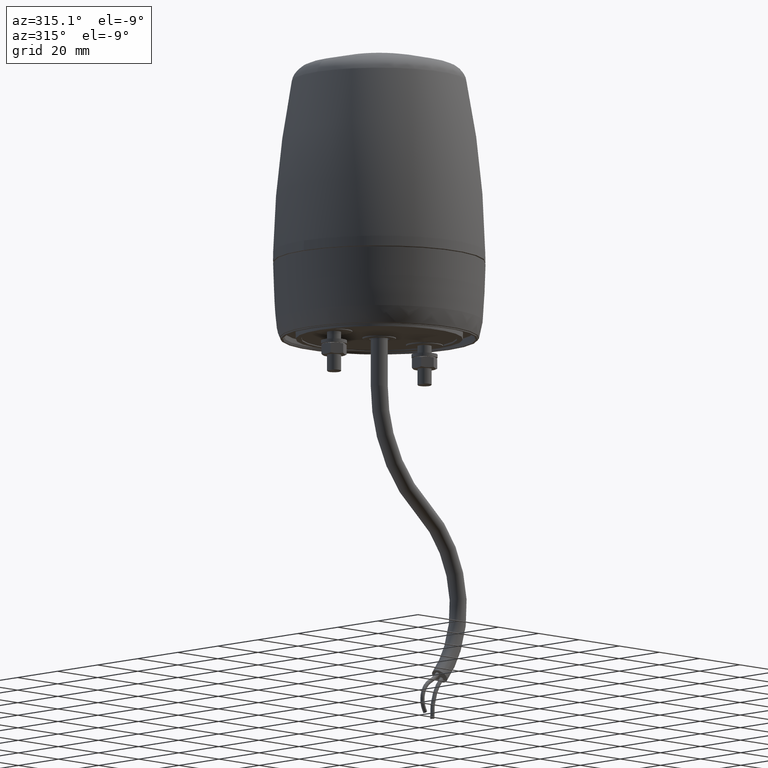
[diagram: clean part render]
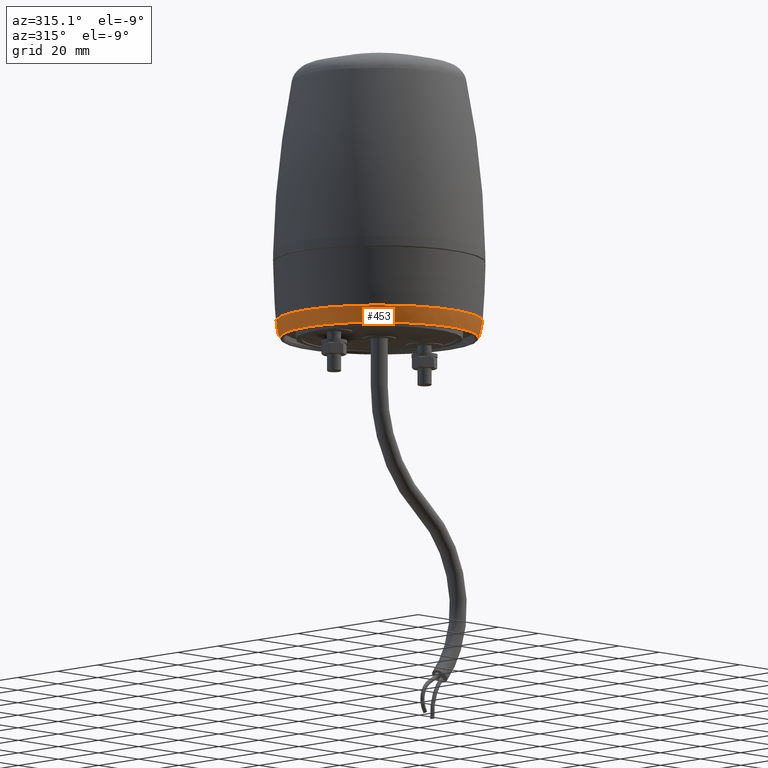
[diagram: same view with one face highlighted and labeled with its STEP entity id]
A machine part, auxiliary view. The second image highlights one B-rep face of the part: STEP entity #453.
In plain terms, the highlighted face is a freeform B-spline surface patch.
Its self-contained STEP definition (entity closure, byte-faithful):
#27=(
BOUNDED_SURFACE()
B_SPLINE_SURFACE(3,3,((#4474,#4475,#4476,#4477,#4478,#4479,#4480),(#4481,
#4482,#4483,#4484,#4485,#4486,#4487),(#4488,#4489,#4490,#4491,#4492,#4493,
#4494),(#4495,#4496,#4497,#4498,#4499,#4500,#4501)),.UNSPECIFIED.,.F.,.T.,
 .F.)
B_SPLINE_SURFACE_WITH_KNOTS((4,4),(1,3,3,3,1),(0.,1.),(-0.5,0.,0.5,1.,1.5),
 .UNSPECIFIED.)
GEOMETRIC_REPRESENTATION_ITEM()
RATIONAL_B_SPLINE_SURFACE(((1.,0.333333333333333,0.333333333333333,1.,0.333333333333333,
0.333333333333333,1.),(0.99513856791269,0.331712855970897,0.331712855970897,
0.99513856791269,0.331712855970897,0.331712855970897,0.99513856791269),(0.99513856791269,
0.331712855970897,0.331712855970897,0.99513856791269,0.331712855970897,0.331712855970897,
0.99513856791269),(1.,0.333333333333333,0.333333333333333,1.,0.333333333333333,
0.333333333333333,1.)))
REPRESENTATION_ITEM('')
SURFACE()
);
#453=ADVANCED_FACE('',(#1069,#1070),#27,.T.);
#1069=FACE_BOUND('',#1262,.T.);
#1070=FACE_BOUND('',#1263,.T.);
#1262=EDGE_LOOP('',(#1694));
#1263=EDGE_LOOP('',(#1695));
#1694=ORIENTED_EDGE('',*,*,#2528,.F.);
#1695=ORIENTED_EDGE('',*,*,#2529,.F.);
#2246=VERTEX_POINT('',#4471);
#2247=VERTEX_POINT('',#4473);
#2528=EDGE_CURVE('',#2246,#2246,#2763,.T.);
#2529=EDGE_CURVE('',#2247,#2247,#2764,.T.);
#2763=CIRCLE('',#2960,35.1803569235131);
#2764=CIRCLE('',#2961,36.4645929040285);
#2960=AXIS2_PLACEMENT_3D('',#4470,#3476,#3477);
#2961=AXIS2_PLACEMENT_3D('',#4472,#3478,#3479);
#3476=DIRECTION('',(0.,0.,-1.));
#3477=DIRECTION('',(-1.,0.,0.));
#3478=DIRECTION('',(0.,0.,1.));
#3479=DIRECTION('',(1.,0.,0.));
#4470=CARTESIAN_POINT('',(0.0196824600000306,-0.0196824600000021,-6.54770796551834));
#4471=CARTESIAN_POINT('',(-35.1606744635131,-0.0196824600000021,-6.54770796551834));
#4472=CARTESIAN_POINT('',(0.0196824600000306,-0.0196824600000021,-0.658859178168889));
#4473=CARTESIAN_POINT('',(36.4842753640286,-0.0196824600000021,-0.658859178168889));
#4474=CARTESIAN_POINT('',(36.4842753640286,-0.0196824600000021,-0.65885917816889));
#4475=CARTESIAN_POINT('',(36.4842753640286,72.9095033480571,-0.65885917816889));
#4476=CARTESIAN_POINT('',(-36.4449104440285,72.9095033480571,-0.65885917816889));
#4477=CARTESIAN_POINT('',(-36.4449104440285,-0.0196824600000021,-0.65885917816889));
#4478=CARTESIAN_POINT('',(-36.4449104440285,-72.9488682680571,-0.65885917816889));
#4479=CARTESIAN_POINT('',(36.4842753640286,-72.9488682680571,-0.65885917816889));
#4480=CARTESIAN_POINT('',(36.4842753640286,-0.0196824600000021,-0.65885917816889));
#4481=CARTESIAN_POINT('',(36.2950222284978,-0.0196824600000021,-2.66886896517223));
#4482=CARTESIAN_POINT('',(36.2950222284978,72.5309970769955,-2.66886896517223));
#4483=CARTESIAN_POINT('',(-36.2556573084977,72.5309970769955,-2.66886896517223));
#4484=CARTESIAN_POINT('',(-36.2556573084977,-0.0196824600000021,-2.66886896517223));
#4485=CARTESIAN_POINT('',(-36.2556573084977,-72.5703619969955,-2.66886896517223));
#4486=CARTESIAN_POINT('',(36.2950222284978,-72.5703619969955,-2.66886896517223));
#4487=CARTESIAN_POINT('',(36.2950222284978,-0.0196824600000021,-2.66886896517223));
#4488=CARTESIAN_POINT('',(35.8648523265617,-0.0196824600000021,-4.64140792514888));
#4489=CARTESIAN_POINT('',(35.8648523265617,71.6706572731233,-4.64140792514888));
#4490=CARTESIAN_POINT('',(-35.8254874065616,71.6706572731233,-4.64140792514888));
#4491=CARTESIAN_POINT('',(-35.8254874065616,-0.0196824600000021,-4.64140792514888));
#4492=CARTESIAN_POINT('',(-35.8254874065616,-71.7100221931233,-4.64140792514888));
#4493=CARTESIAN_POINT('',(35.8648523265617,-71.7100221931233,-4.64140792514888));
#4494=CARTESIAN_POINT('',(35.8648523265617,-0.0196824600000021,-4.64140792514888));
#4495=CARTESIAN_POINT('',(35.2000393835132,-0.0196824600000021,-6.54770796551835));
#4496=CARTESIAN_POINT('',(35.2000393835132,70.3410313870263,-6.54770796551834));
#4497=CARTESIAN_POINT('',(-35.1606744635131,70.3410313870263,-6.54770796551834));
#4498=CARTESIAN_POINT('',(-35.1606744635131,-0.0196824600000021,-6.54770796551835));
#4499=CARTESIAN_POINT('',(-35.1606744635131,-70.3803963070263,-6.54770796551834));
#4500=CARTESIAN_POINT('',(35.2000393835132,-70.3803963070263,-6.54770796551834));
#4501=CARTESIAN_POINT('',(35.2000393835132,-0.0196824600000021,-6.54770796551835));